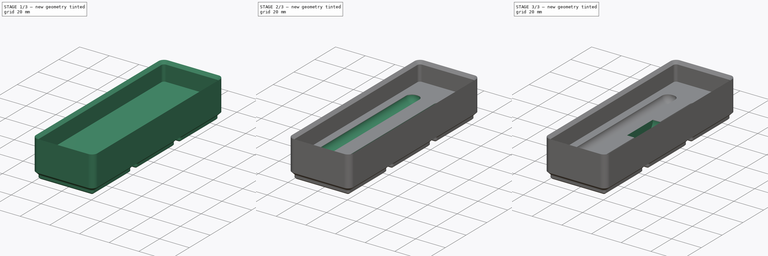
[diagram: build sequence overview — one tinted view per stage of 3, left to right]
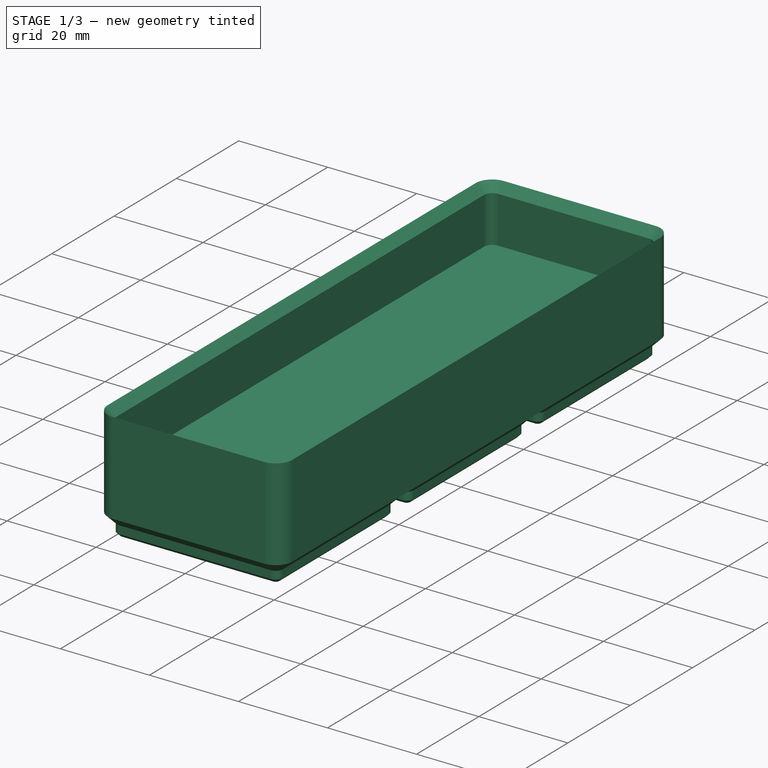
[diagram: stage 1 of 3 — iso view after this stage's code; geometry added in this stage tinted green]
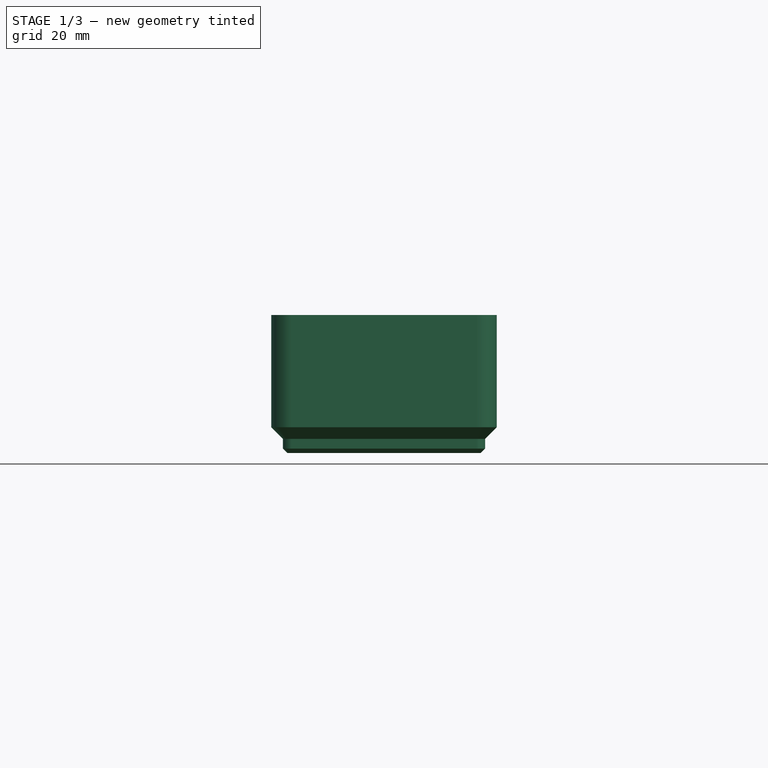
[diagram: stage 1 of 3 — front view after this stage's code; geometry added in this stage tinted green]
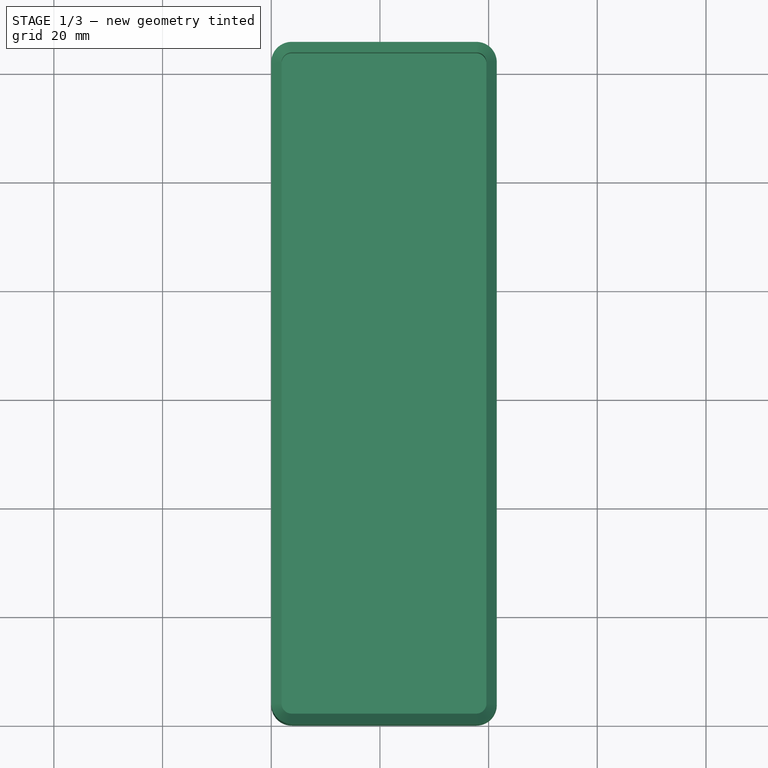
[diagram: stage 1 of 3 — top view after this stage's code; geometry added in this stage tinted green]
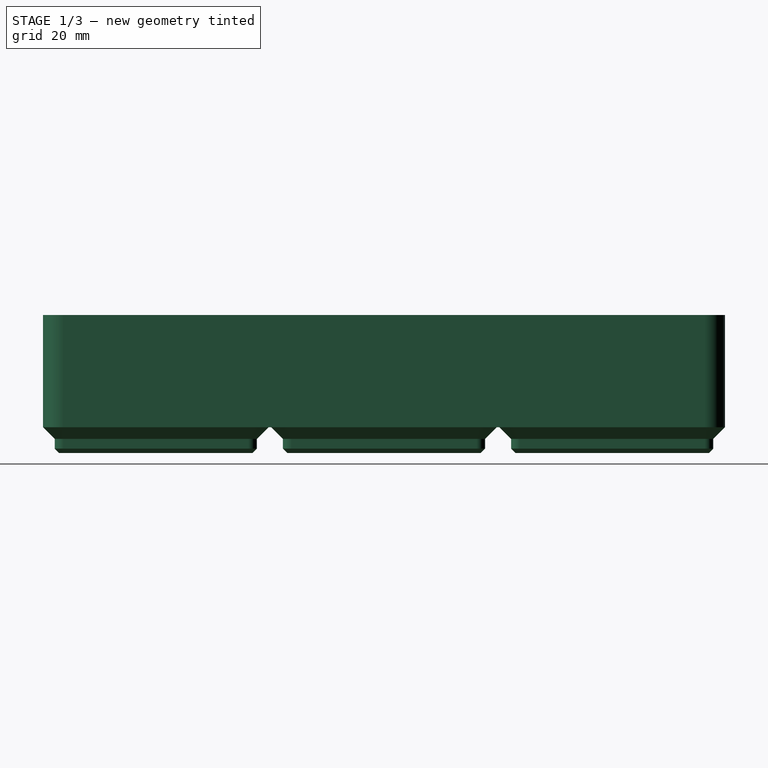
[diagram: stage 1 of 3 — right view after this stage's code; geometry added in this stage tinted green]
FCSTD DOCUMENT  (FreeCAD 1.0R39319 (Git))
Label: gridfinity_8mm_drill_tray
License: All rights reserved
LicenseURL: https://en.wikipedia.org/wiki/All_rights_reserved
objects: Sketcher::SketchObject×3, PartDesign::Pocket×2, Part::Feature×1, PartDesign::FeatureBase×1, PartDesign::Groove×1, PartDesign::Line×1, PartDesign::Mirrored×1, PartDesign::Plane×1, PartDesign::Fillet×1, PartDesign::Body×1
note: 26 computed .brp shape members not serialized (recipe doc carries the construction recipe); baked Part::Feature solids carry a one-line shape summary decoded from their .brp

FEATURE [Part::Feature] Part__Feature  label="Open CASCADE STEP translator 7.7 353"
  shape: bbox 41.5 x 125.5 x 25.4 mm, 118 faces (baked)
FEATURE [PartDesign::FeatureBase] BaseFeature
  BaseFeature = -> Part__Feature
  Suppressed = false
FEATURE [PartDesign::Pocket] Pocket
  BaseFeature = -> BaseFeature
  Direction = (0,0,-1)
  Length = 8
  Length2 = 5
  Profile = -> BaseFeature [Face118]
  Refine = true
  Suppressed = false
  Type = 0
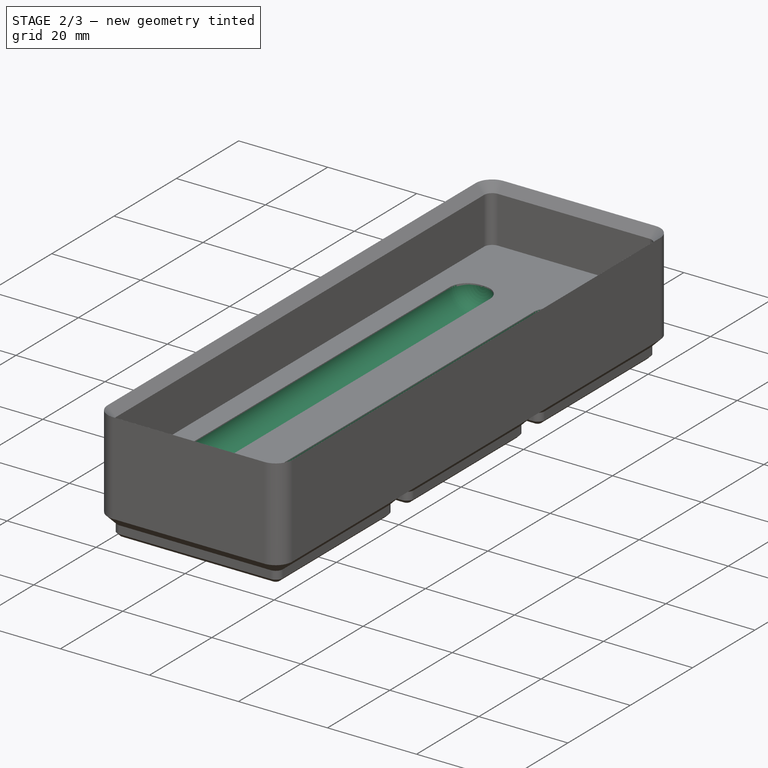
[diagram: stage 2 of 3 — iso view after this stage's code; geometry added in this stage tinted green]
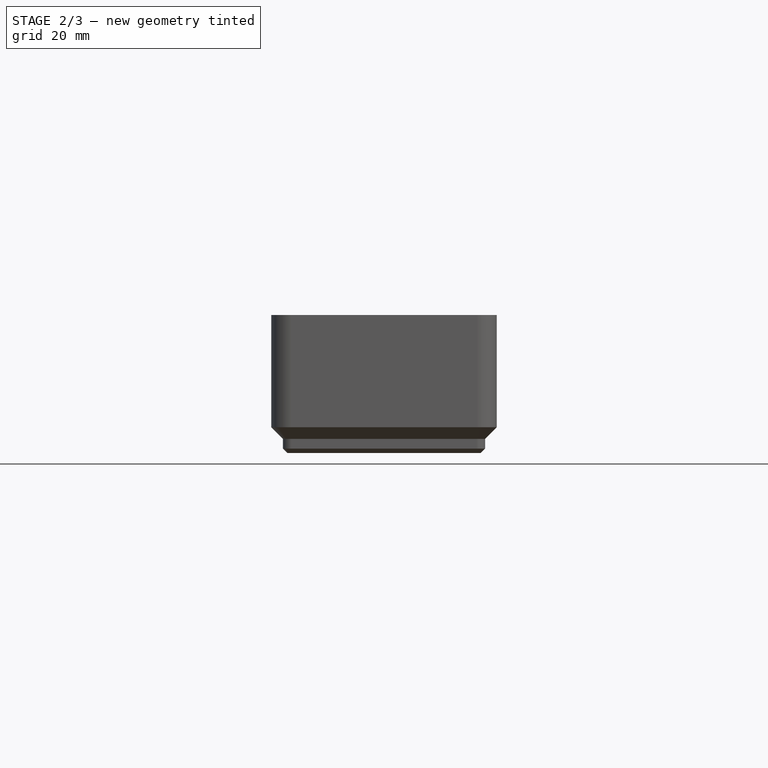
[diagram: stage 2 of 3 — front view after this stage's code; geometry added in this stage tinted green]
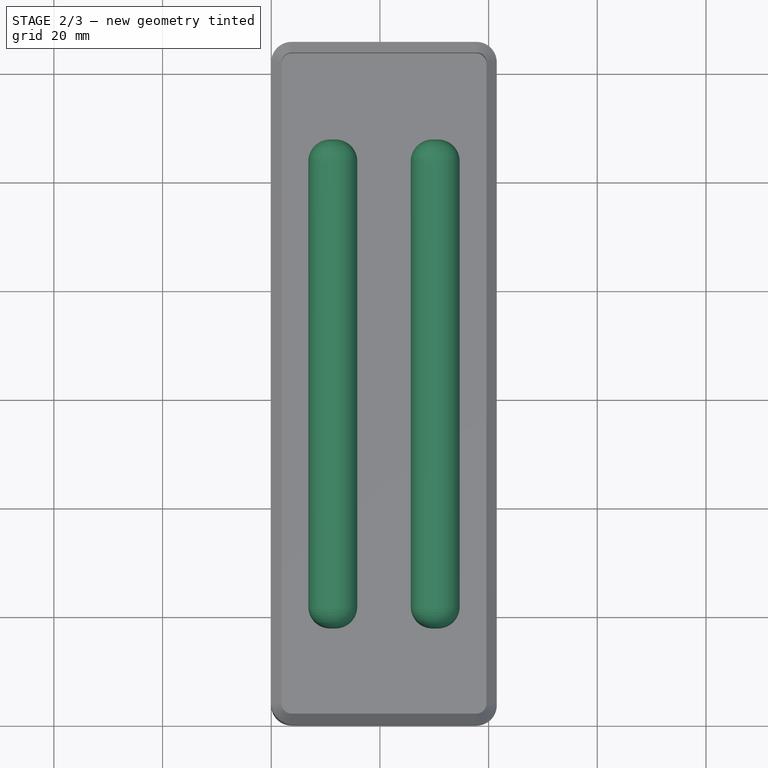
[diagram: stage 2 of 3 — top view after this stage's code; geometry added in this stage tinted green]
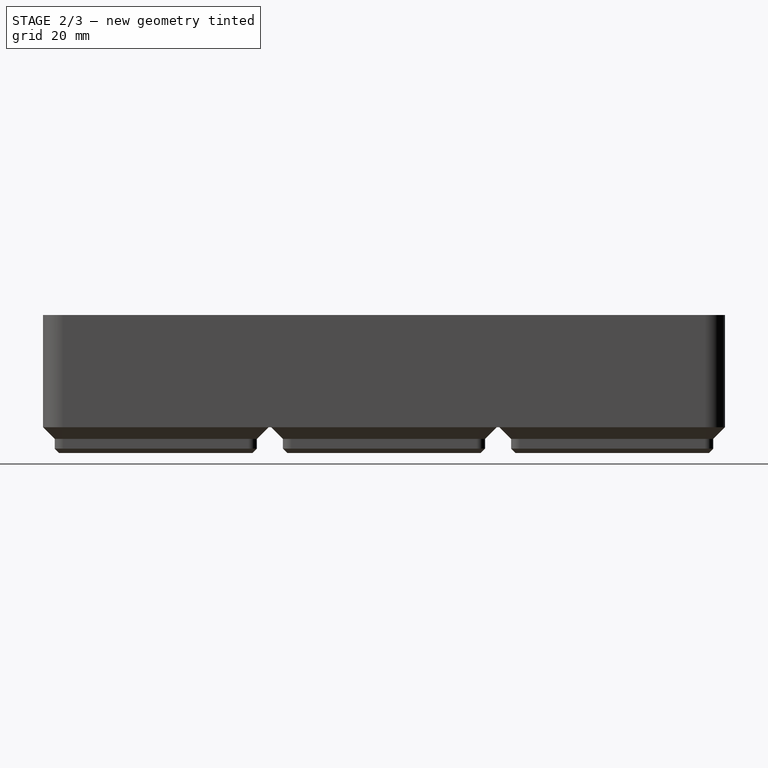
[diagram: stage 2 of 3 — right view after this stage's code; geometry added in this stage tinted green]
FEATURE [Sketcher::SketchObject] Sketch
  ArcFitTolerance = 1e-06
  AttachmentSupport = -> [Pocket]
  ExternalGeometry = -> [Pocket]
  FullyConstrained = true
  MakeInternals = false
  MapMode = 5
  Placement = pos=(0,0,13) rot=(0,0,1;0rad)
  sketch-geometry (16):
    g0: LineSegment [constr] StartX=20.75 StartY=123.6 StartZ=0 EndX=20.75 EndY=1.9 EndZ=0
    g1: LineSegment StartX=11.325 StartY=17.75 StartZ=0 EndX=11.825 EndY=17.75 EndZ=0
    g2: LineSegment StartX=15.825 StartY=21.75 StartZ=0 EndX=15.825 EndY=55.5389 EndZ=0
    g3: LineSegment StartX=11.825 StartY=107.75 StartZ=0 EndX=11.325 EndY=107.75 EndZ=0
    g4: LineSegment StartX=11.325 StartY=107.75 StartZ=0 EndX=11.325 EndY=17.75 EndZ=0
    g5: GeomPoint [constr] X=13.575 Y=62.75 Z=0
    g6: GeomPoint X=20.75 Y=62.75 Z=0
    g7: GeomPoint X=1.9 Y=62.75 Z=0
    g8: GeomPoint X=11.325 Y=62.75 Z=0
    g9: ArcOfCircle CenterX=11.825 CenterY=103.75 CenterZ=0 NormalX=0 NormalY=0 NormalZ=1 AngleXU=0 Radius=4 StartAngle=4e-16 EndAngle=1.5708
    g10: GeomPoint [constr] X=15.825 Y=107.75 Z=0
    g11: ArcOfCircle CenterX=11.825 CenterY=21.75 CenterZ=0 NormalX=0 NormalY=0 NormalZ=1 AngleXU=0 Radius=4 StartAngle=4.71239 EndAngle=6.28319
    g12: GeomPoint [constr] X=15.825 Y=17.75 Z=0
    g13: ArcOfCircle [constr] CenterX=11.325 CenterY=62.75 CenterZ=0 NormalX=0 NormalY=0 NormalZ=1 AngleXU=0 Radius=8.5 StartAngle=5.2703 EndAngle=7.29607
    g14: LineSegment StartX=15.825 StartY=69.9611 StartZ=0 EndX=15.825 EndY=103.75 EndZ=0
    g15: LineSegment StartX=15.825 StartY=69.9611 StartZ=0 EndX=15.825 EndY=55.5389 EndZ=0
  constraints (34):
    c: Symmetric(g-3,g-3,g0)
    c: Symmetric(g-4,g-4,g0)
    c: Coincident(g3,g4)
    c: Coincident(g4,g1)
    c: Horizontal(g1)
    c: Horizontal(g3)
    c: Vertical(g2)
    c: Vertical(g4)
    c: Symmetric(g10,g1,g5)
    c: Symmetric(g0,g0,g6)
    c: Symmetric(g-5,g-5,g7)
    c: Symmetric(g4,g4,g8)
    c: Symmetric(g7,g6,g8)
    c: DistanceX(g3,g10) = 4.5
    c: PointOnObject(g10,g3)
    c: PointOnObject(g10,g14)
    c: Tangent(g3,g9) = -1.5708
    c: PointOnObject(g12,g1)
    c: PointOnObject(g12,g2)
    c: Tangent(g1,g11) = -1.5708
    c: Tangent(g2,g11) = -1.5708
    c: Equal(g11,g9)
    c: DistanceY(g4,g4) = 90
    c: Radius(g9) = 4
    c: Diameter(g13) = 17
    c: Coincident(g13,g8)
    c: PointOnObject(g13,g14)
    c: Coincident(g2,g13)
    c: PointOnObject(g14,g13)
    c: Coincident(g15,g13)
    c: Coincident(g15,g2)
    c: Vertical(g15)
    c: Vertical(g14)
    c: Tangent(g14,g9) = -1.5708
FEATURE [PartDesign::Groove] Groove
  Angle = 360
  Angle2 = 60
  Axis = (0,-1,0)
  Base = (11.325,107.75,13)
  BaseFeature = -> Pocket
  Profile = -> Sketch
  ReferenceAxis = -> Sketch [Edge4]
  Refine = true
  Suppressed = false
  Type = 0
FEATURE [Sketcher::SketchObject] Sketch001
  ArcFitTolerance = 1e-06
  AttachmentSupport = -> [Groove]
  ExternalGeometry = -> [Groove]
  FullyConstrained = true
  MakeInternals = false
  MapMode = 5
  Placement = pos=(0,0,13) rot=(0,0,1;0rad)
  sketch-geometry (1):
    g0: LineSegment StartX=20.75 StartY=123.6 StartZ=0 EndX=20.75 EndY=1.9 EndZ=0
  constraints (2):
    c: Symmetric(g-3,g-3,g0)
    c: Symmetric(g-4,g-4,g0)
FEATURE [PartDesign::Line] DatumLine
  AttacherType = Attacher::AttachEngineLine
  AttachmentSupport = -> [Sketch001]
  Length = 20
  MapMode = 29
  Placement = pos=(20.75,0,13) rot=(1,0,0;1.5708rad)
  ResizeMode = 0
FEATURE [PartDesign::Mirrored] Mirrored
  BaseFeature = -> Groove
  MirrorPlane = -> Sketch [Axis]
  Originals = -> [Groove]
  Refine = true
  Suppressed = false
  TransformMode = 0
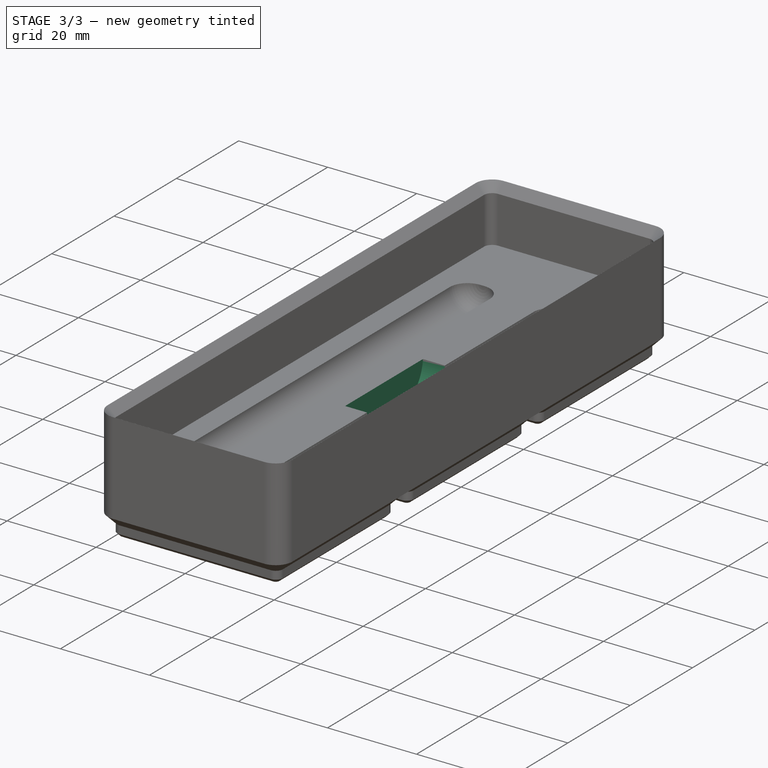
[diagram: stage 3 of 3 — iso view after this stage's code; geometry added in this stage tinted green]
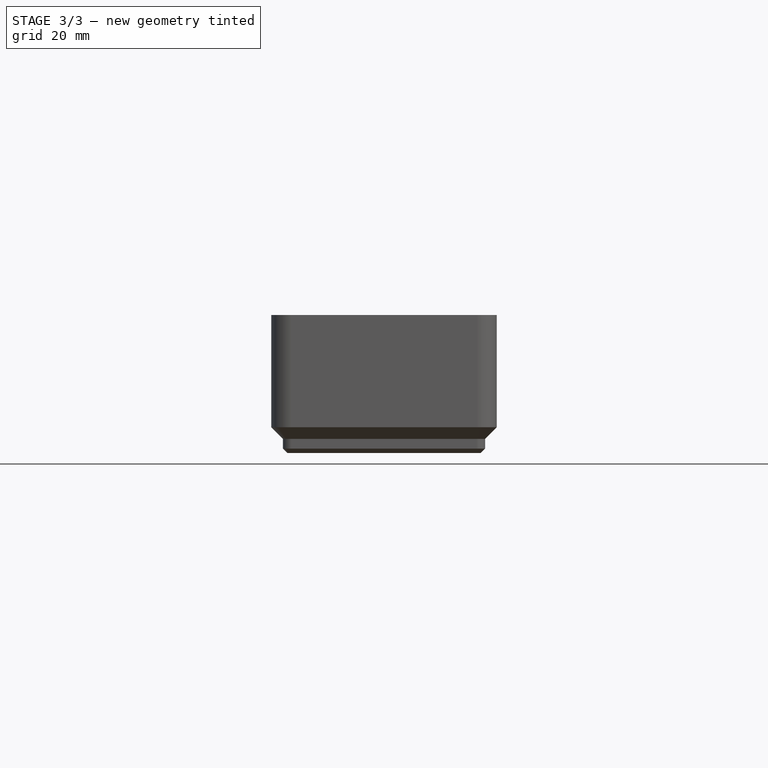
[diagram: stage 3 of 3 — front view after this stage's code; geometry added in this stage tinted green]
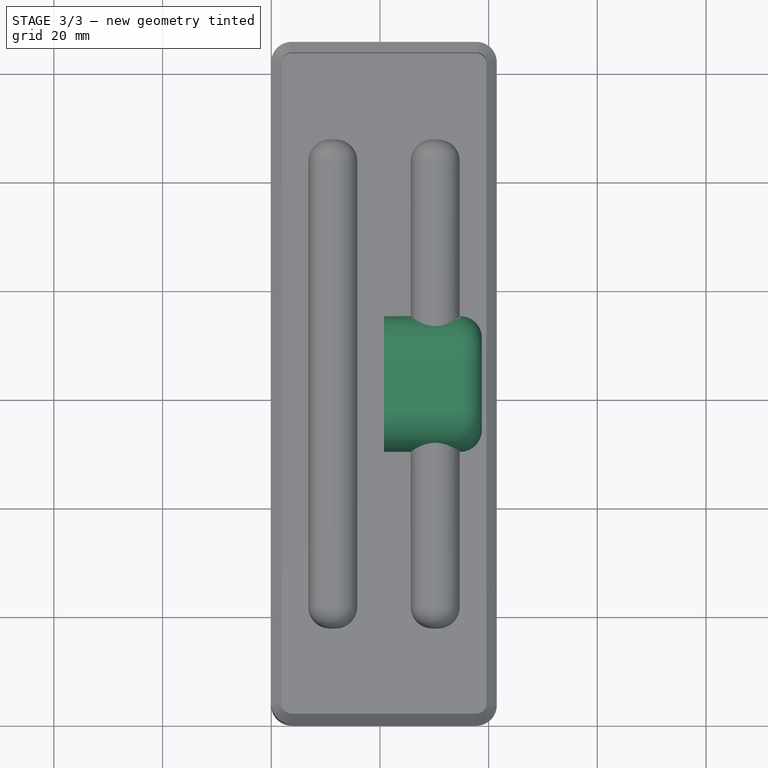
[diagram: stage 3 of 3 — top view after this stage's code; geometry added in this stage tinted green]
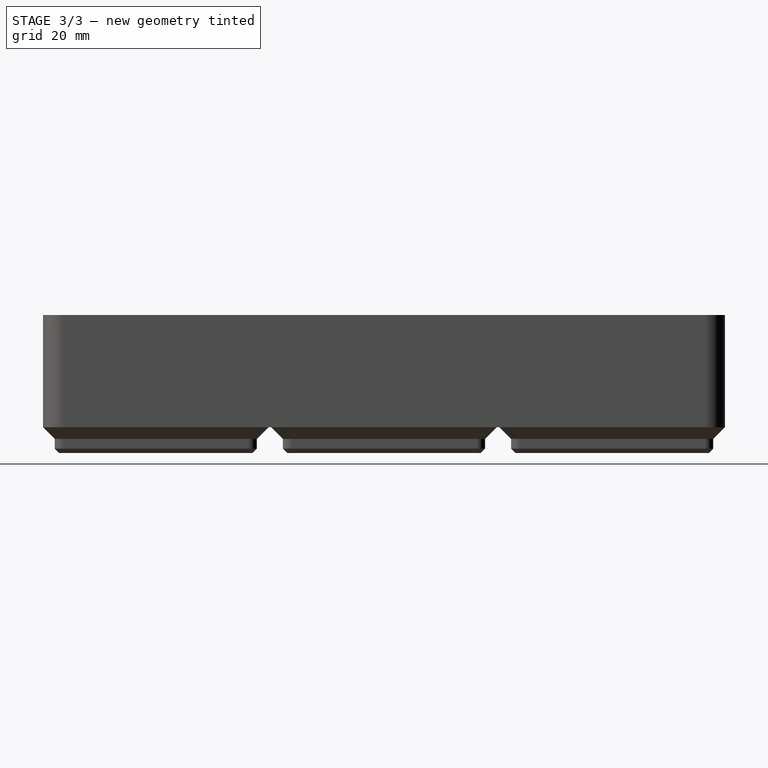
[diagram: stage 3 of 3 — right view after this stage's code; geometry added in this stage tinted green]
FEATURE [PartDesign::Plane] DatumPlane
  AttachmentOffset = pos=(0,0,0) rot=(0,1,0;1.5708rad)
  AttachmentSupport = -> [DatumLine]
  Length = 167.919
  MapMode = 7
  Placement = pos=(20.75,0,13) rot=(-0.57735,0.57735,0.57735;4.18879rad)
  ResizeMode = 0
  Width = 67.8186
FEATURE [Sketcher::SketchObject] Sketch002
  ArcFitTolerance = 1e-06
  AttachmentSupport = -> [DatumPlane]
  ExternalGeometry = -> [Mirrored]
  FullyConstrained = true
  MakeInternals = false
  MapMode = 5
  Placement = pos=(20.75,0,13) rot=(0.57735,-0.57735,-0.57735;2.0944rad)
  sketch-geometry (9):
    g0: LineSegment StartX=-67.25 StartY=-7.5 StartZ=0 EndX=-58.25 EndY=-7.5 EndZ=0
    g1: LineSegment StartX=-50.25 StartY=0.5 StartZ=0 EndX=-50.25 EndY=7.5 EndZ=0
    g2: LineSegment StartX=-50.25 StartY=7.5 StartZ=0 EndX=-75.25 EndY=7.5 EndZ=0
    g3: LineSegment StartX=-75.25 StartY=7.5 StartZ=0 EndX=-75.25 EndY=0.5 EndZ=0
    g4: GeomPoint [constr] X=-62.75 Y=0 Z=0
    g5: ArcOfCircle CenterX=-67.25 CenterY=0.5 CenterZ=0 NormalX=0 NormalY=0 NormalZ=1 AngleXU=0 Radius=8 StartAngle=3.14159 EndAngle=4.71239
    g6: GeomPoint [constr] X=-75.25 Y=-7.5 Z=0
    g7: ArcOfCircle CenterX=-58.25 CenterY=0.5 CenterZ=0 NormalX=0 NormalY=0 NormalZ=1 AngleXU=0 Radius=8 StartAngle=4.71239 EndAngle=6.28319
    g8: GeomPoint [constr] X=-50.25 Y=-7.5 Z=0
  constraints (20):
    c: Coincident(g1,g2)
    c: Coincident(g2,g3)
    c: Horizontal(g0)
    c: Horizontal(g2)
    c: Vertical(g1)
    c: Vertical(g3)
    c: Symmetric(g2,g6,g4)
    c: Symmetric(g-4,g-4,g4)
    c: DistanceX(g2,g2) = 25
    c: DistanceY(g6,g3) = 15
    c: PointOnObject(g6,g3)
    c: PointOnObject(g6,g0)
    c: Tangent(g3,g5) = -1.5708
    c: Tangent(g0,g5) = -1.5708
    c: PointOnObject(g8,g0)
    c: PointOnObject(g8,g1)
    c: Tangent(g0,g7) = -1.5708
    c: Tangent(g1,g7) = -1.5708
    c: Equal(g5,g7)
    c: Radius(g5) = 8
FEATURE [PartDesign::Pocket] Pocket001
  BaseFeature = -> Mirrored
  Direction = (1,0,0)
  Length = 18
  Length2 = 5
  Profile = -> Sketch002
  ReferenceAxis = -> Sketch002 [N_Axis]
  Refine = true
  Suppressed = false
  Type = 0
FEATURE [PartDesign::Fillet] Fillet
  Base = -> Pocket001 [Edge316]
  BaseFeature = -> Pocket001
  Radius = 4
  Refine = true
  SupportTransform = false
  Suppressed = false
  UseAllEdges = false
FEATURE [PartDesign::Body] Body
  AllowCompound = false
  BaseFeature = -> Part__Feature
  Group = -> [BaseFeature,Pocket,Sketch,Groove,Sketch001,DatumLine,Mirrored,DatumPlane,Sketch002,Pocket001,Fillet]
  Origin = -> Origin
  Tip = -> Fillet
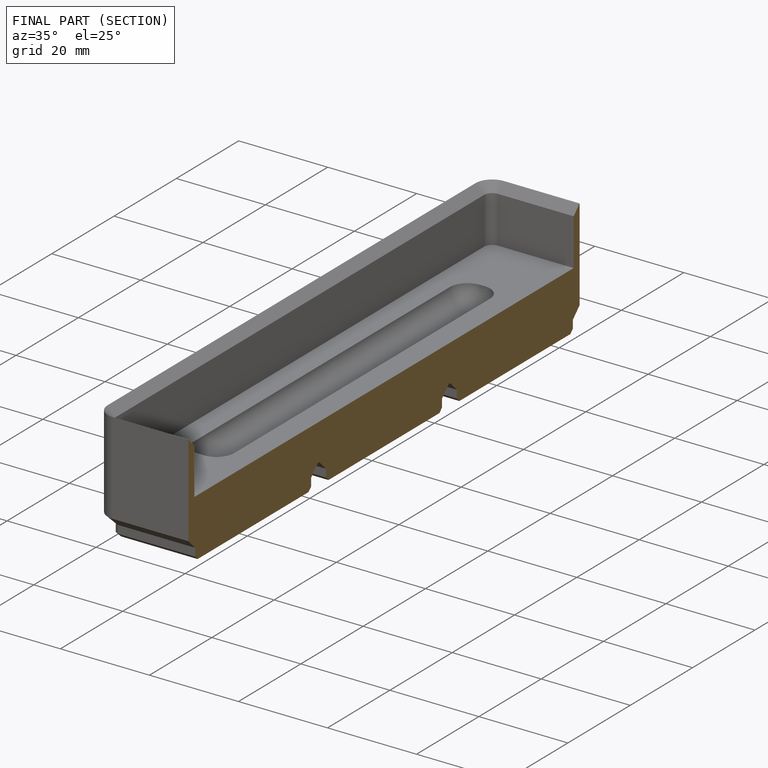
[diagram: finished part — half-section view (interior)]
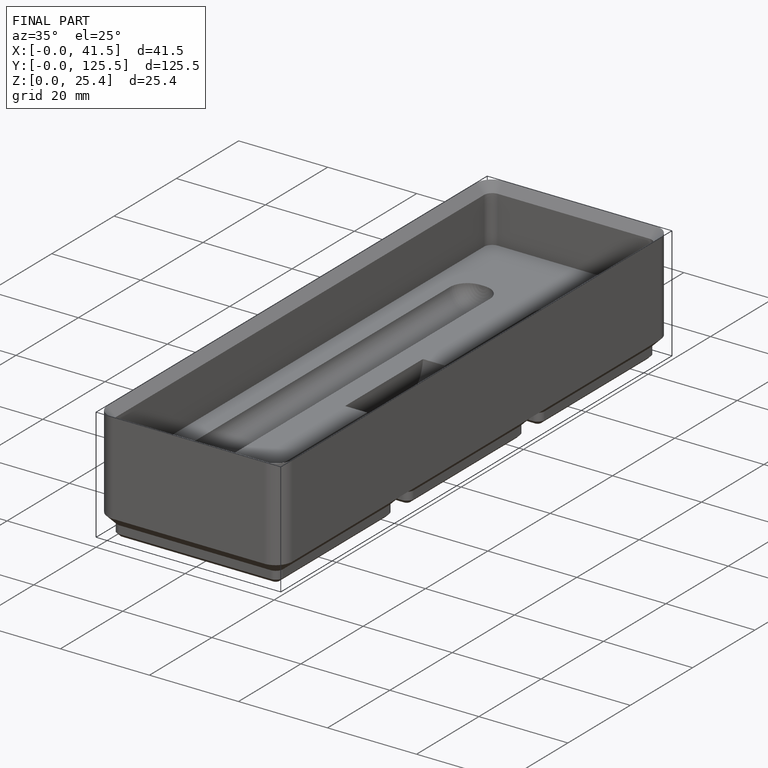
[diagram: finished part — iso view with bounding-box wireframe]
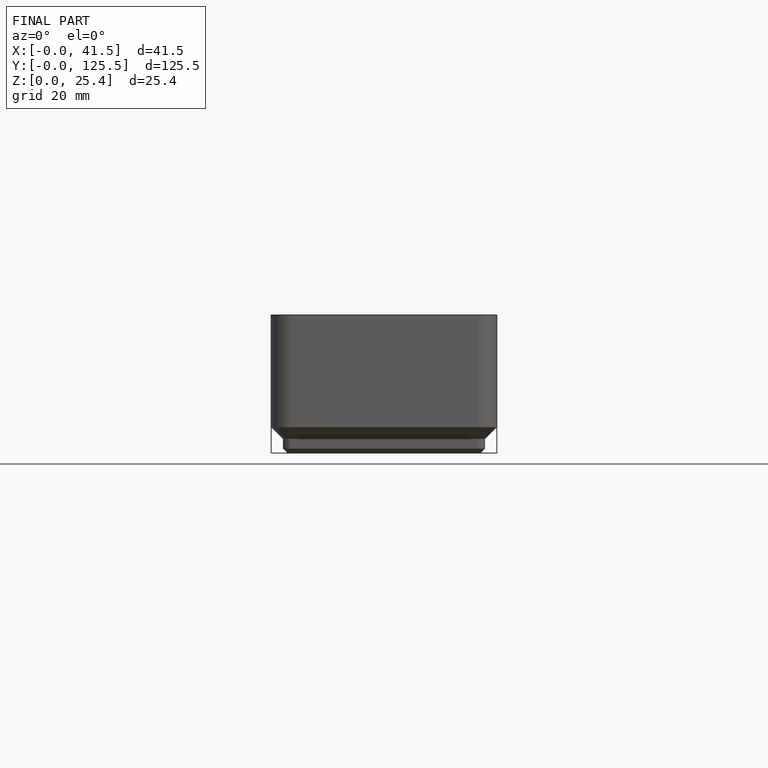
[diagram: finished part — front view with bounding-box wireframe]
